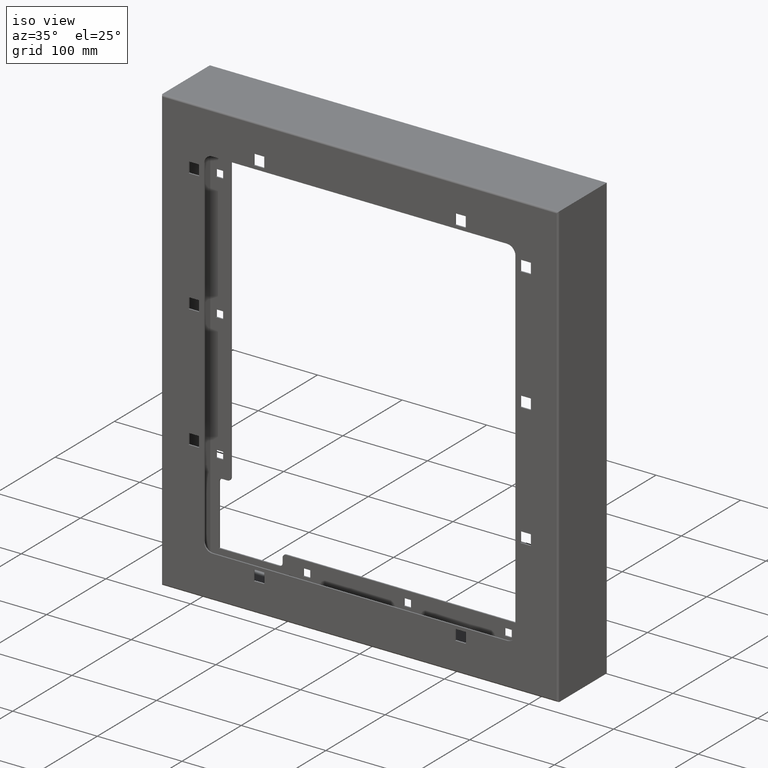
[diagram: clean part render]
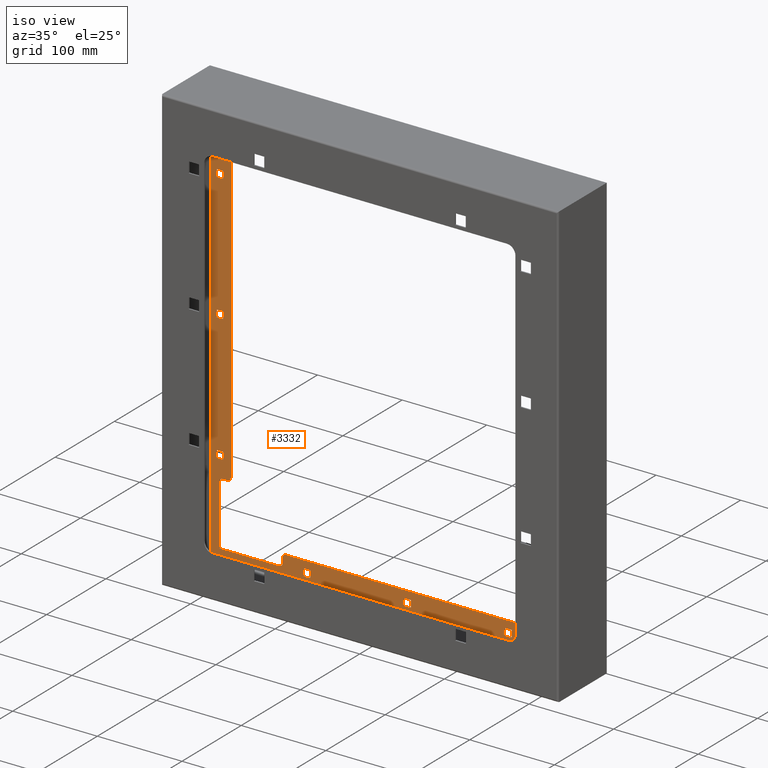
[diagram: same view with one face highlighted and labeled with its STEP entity id]
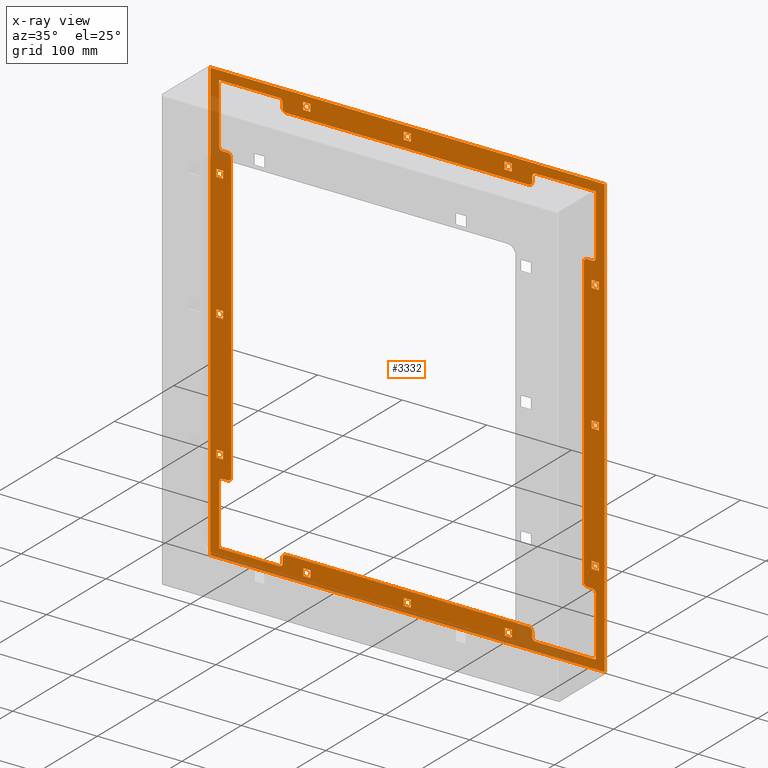
[diagram: x-ray of the same camera — body ghosted, the highlighted face saturated]
A machine part, iso view. The second image highlights one B-rep face of the part: STEP entity #3332.
The next image is the same camera in x-ray: the body ghosted, the highlighted face saturated — about 8% of this face is hidden behind the body in this view.
In plain terms, the highlighted planar face has unit normal (0, -1, 0).
Its self-contained STEP definition (entity closure, byte-faithful):
#1 = CARTESIAN_POINT ( 'NONE',  ( 114.7499999999999700, 80.50000000000000000, 253.2500000000000300 ) ) ;
#3 = CARTESIAN_POINT ( 'NONE',  ( -234.5000000000001700, 80.50000000000000000, 249.9999999999996600 ) ) ;
#4 = CARTESIAN_POINT ( 'NONE',  ( -123.2500000000000000, 80.50000000000000000, -253.2500000000000300 ) ) ;
#5 = CARTESIAN_POINT ( 'NONE',  ( 123.2500000000000000, 80.50000000000000000, 253.2500000000000300 ) ) ;
#7 = CARTESIAN_POINT ( 'NONE',  ( -234.5000000000000000, 80.50000000000000000, 253.2499999999999700 ) ) ;
#9 = DIRECTION ( 'NONE',  ( -1.000000000000000000, 0.0000000000000000000, 0.0000000000000000000 ) ) ;
#11 = CARTESIAN_POINT ( 'NONE',  ( -234.4999999999998000, 80.50000000000000000, 249.9999999999998900 ) ) ;
#15 = DIRECTION ( 'NONE',  ( -0.0000000000000000000, 1.000000000000000000, -0.0000000000000000000 ) ) ;
#16 = CARTESIAN_POINT ( 'NONE',  ( 208.5000000000000300, 80.50000000000000000, -262.0000000000001100 ) ) ;
#17 = DIRECTION ( 'NONE',  ( -2.040851148208006500E-016, 0.0000000000000000000, 1.000000000000000000 ) ) ;
#18 = CARTESIAN_POINT ( 'NONE',  ( -4.249999999999998200, 80.50000000000000000, 253.2500000000000300 ) ) ;
#19 = DIRECTION ( 'NONE',  ( 0.0000000000000000000, 0.0000000000000000000, -1.000000000000000000 ) ) ;
#21 = CARTESIAN_POINT ( 'NONE',  ( -232.9999999999999700, 80.50000000000000000, -262.0000000000000000 ) ) ;
#23 = CARTESIAN_POINT ( 'NONE',  ( 143.4999999999999700, 80.50000000000000000, -240.0000000000000600 ) ) ;
#26 = CARTESIAN_POINT ( 'NONE',  ( -234.5000000000000000, 80.50000000000000000, -236.0000000000000300 ) ) ;
#29 = DIRECTION ( 'NONE',  ( 0.0000000000000000000, 0.0000000000000000000, -1.000000000000000000 ) ) ;
#30 = DIRECTION ( 'NONE',  ( 0.0000000000000000000, -1.000000000000000000, 0.0000000000000000000 ) ) ;
#35 = CARTESIAN_POINT ( 'NONE',  ( -151.4999999999999700, 80.50000000000000000, -249.9999999999999400 ) ) ;
#36 = CARTESIAN_POINT ( 'NONE',  ( 217.7499999999996000, 80.50000000000000000, -262.0000000000015300 ) ) ;
#37 = DIRECTION ( 'NONE',  ( -1.000000000000000000, 0.0000000000000000000, 0.0000000000000000000 ) ) ;
#41 = CARTESIAN_POINT ( 'NONE',  ( -217.7499999999999700, 80.50000000000000000, -154.2500000000000300 ) ) ;
#42 = CARTESIAN_POINT ( 'NONE',  ( -114.7499999999999700, 80.50000000000000000, -253.2500000000000300 ) ) ;
#43 = CARTESIAN_POINT ( 'NONE',  ( -4.249999999999998200, 80.50000000000000000, 244.7500000000000000 ) ) ;
#44 = DIRECTION ( 'NONE',  ( -0.0000000000000000000, 1.000000000000000000, -0.0000000000000000000 ) ) ;
#45 = CARTESIAN_POINT ( 'NONE',  ( 4.250000000000003600, 80.50000000000000000, 244.7500000000000300 ) ) ;
#47 = CARTESIAN_POINT ( 'NONE',  ( 226.2499999999999700, 80.50000000000000000, -154.2500000000000300 ) ) ;
#48 = CARTESIAN_POINT ( 'NONE',  ( -4.250000000000003600, 80.50000000000000000, -253.2500000000000300 ) ) ;
#49 = CARTESIAN_POINT ( 'NONE',  ( 218.5000000000000000, 80.50000000000000000, -179.0000000000000000 ) ) ;
#50 = CARTESIAN_POINT ( 'NONE',  ( -234.5000000000000000, 80.50000000000000000, -249.9999999999998000 ) ) ;
#51 = CARTESIAN_POINT ( 'NONE',  ( -226.2499999999999400, 80.50000000000000000, 4.249999999999999100 ) ) ;
#52 = CARTESIAN_POINT ( 'NONE',  ( -217.7499999999999400, 80.50000000000000000, 4.249999999999999100 ) ) ;
#53 = CARTESIAN_POINT ( 'NONE',  ( 4.250000000000003600, 80.50000000000000000, -262.0000000000000600 ) ) ;
#54 = DIRECTION ( 'NONE',  ( -3.700743415417189100E-016, 0.0000000000000000000, 1.000000000000000000 ) ) ;
#57 = CARTESIAN_POINT ( 'NONE',  ( 217.7500000000000000, 80.50000000000000000, 145.7500000000000600 ) ) ;
#59 = CARTESIAN_POINT ( 'NONE',  ( 217.7499999999999400, 80.50000000000000000, -154.2500000000000300 ) ) ;
#62 = CARTESIAN_POINT ( 'NONE',  ( -234.4999999999999400, 80.50000000000000000, -244.7499999999992300 ) ) ;
#64 = CARTESIAN_POINT ( 'NONE',  ( 212.5000000000001100, 80.50000000000000000, 170.9999999999999400 ) ) ;
#65 = CARTESIAN_POINT ( 'NONE',  ( -218.5000000000000000, 80.50000000000000000, -175.0000000000000000 ) ) ;
#68 = DIRECTION ( 'NONE',  ( 1.000000000000000000, 0.0000000000000000000, -3.700743415417188600E-016 ) ) ;
#69 = DIRECTION ( 'NONE',  ( 2.352167425053297400E-016, 0.0000000000000000000, 1.000000000000000000 ) ) ;
#70 = DIRECTION ( 'NONE',  ( -1.059373115100340100E-016, 0.0000000000000000000, 1.000000000000000000 ) ) ;
#71 = CARTESIAN_POINT ( 'NONE',  ( -143.4999999999999700, 80.50000000000000000, -240.0000000000000300 ) ) ;
#72 = DIRECTION ( 'NONE',  ( -1.000000000000000000, 0.0000000000000000000, 0.0000000000000000000 ) ) ;
#73 = CARTESIAN_POINT ( 'NONE',  ( -234.5000000000000000, 80.50000000000000000, 174.9999999999999400 ) ) ;
#74 = DIRECTION ( 'NONE',  ( 1.000000000000000000, 0.0000000000000000000, 0.0000000000000000000 ) ) ;
#76 = DIRECTION ( 'NONE',  ( 0.0000000000000000000, 0.0000000000000000000, -1.000000000000000000 ) ) ;
#78 = CARTESIAN_POINT ( 'NONE',  ( 151.4999999999999700, 80.50000000000000000, -245.9999999999999400 ) ) ;
#81 = CARTESIAN_POINT ( 'NONE',  ( -114.7499999999999700, 80.50000000000000000, -244.7500000000000300 ) ) ;
#82 = CARTESIAN_POINT ( 'NONE',  ( -218.5000000000000600, 80.50000000000000000, 178.9999999999999400 ) ) ;
#83 = CARTESIAN_POINT ( 'NONE',  ( -151.5000000000000300, 80.50000000000000000, 245.9999999999998900 ) ) ;
#84 = DIRECTION ( 'NONE',  ( 0.0000000000000000000, 0.0000000000000000000, -1.000000000000000000 ) ) ;
#85 = DIRECTION ( 'NONE',  ( 0.0000000000000000000, -1.000000000000000000, 0.0000000000000000000 ) ) ;
#86 = CARTESIAN_POINT ( 'NONE',  ( -234.5000000000000000, 80.50000000000000000, 4.249999999999976000 ) ) ;
#87 = CARTESIAN_POINT ( 'NONE',  ( 226.2499999999999700, 80.50000000000000000, 154.2500000000000300 ) ) ;
#88 = DIRECTION ( 'NONE',  ( -3.265361837132810400E-015, 0.0000000000000000000, -1.000000000000000000 ) ) ;
#89 = DIRECTION ( 'NONE',  ( 3.700743415417189100E-016, 0.0000000000000000000, 1.000000000000000000 ) ) ;
#92 = DIRECTION ( 'NONE',  ( -0.0000000000000000000, 1.000000000000000000, -0.0000000000000000000 ) ) ;
#93 = DIRECTION ( 'NONE',  ( -1.000000000000000000, 0.0000000000000000000, 0.0000000000000000000 ) ) ;
#97 = DIRECTION ( 'NONE',  ( 0.0000000000000000000, 0.0000000000000000000, -1.000000000000000000 ) ) ;
#102 = CARTESIAN_POINT ( 'NONE',  ( -226.2499999999999700, 80.50000000000000000, -154.2500000000000300 ) ) ;
#103 = DIRECTION ( 'NONE',  ( 0.0000000000000000000, -1.000000000000000000, 0.0000000000000000000 ) ) ;
#104 = DIRECTION ( 'NONE',  ( 0.0000000000000000000, 0.0000000000000000000, -1.000000000000000000 ) ) ;
#105 = DIRECTION ( 'NONE',  ( 0.0000000000000000000, 0.0000000000000000000, -1.000000000000000000 ) ) ;
#106 = CARTESIAN_POINT ( 'NONE',  ( 222.5000000000002600, 80.50000000000000000, -261.9999999999998300 ) ) ;
#107 = CARTESIAN_POINT ( 'NONE',  ( 222.4999999999999100, 80.50000000000000000, -262.0000000000001700 ) ) ;
#109 = DIRECTION ( 'NONE',  ( 2.040851148208006500E-016, 0.0000000000000000000, 1.000000000000000000 ) ) ;
#110 = DIRECTION ( 'NONE',  ( 1.000000000000000000, 0.0000000000000000000, -6.656013337081273500E-017 ) ) ;
#111 = CARTESIAN_POINT ( 'NONE',  ( -234.5000000000000000, 80.50000000000000000, -175.0000000000000000 ) ) ;
#112 = DIRECTION ( 'NONE',  ( -1.000000000000000000, 0.0000000000000000000, -3.700743415417188600E-016 ) ) ;
#113 = DIRECTION ( 'NONE',  ( 0.0000000000000000000, 0.0000000000000000000, -1.000000000000000000 ) ) ;
#114 = CARTESIAN_POINT ( 'NONE',  ( 147.4999999999999700, 80.50000000000000000, -262.0000000000000000 ) ) ;
#116 = CARTESIAN_POINT ( 'NONE',  ( 212.5000000000000600, 80.50000000000000000, -170.9999999999999700 ) ) ;
#118 = DIRECTION ( 'NONE',  ( 0.0000000000000000000, -1.000000000000000000, 0.0000000000000000000 ) ) ;
#119 = CARTESIAN_POINT ( 'NONE',  ( 226.2499999999999700, 80.50000000000000000, 145.7500000000000300 ) ) ;
#122 = CARTESIAN_POINT ( 'NONE',  ( -208.4999999999999100, 80.50000000000000000, 170.9999999999999400 ) ) ;
#123 = CARTESIAN_POINT ( 'NONE',  ( -222.5000000000002300, 80.50000000000000000, -262.0000000000000000 ) ) ;
#124 = DIRECTION ( 'NONE',  ( -3.700743415417189100E-016, 0.0000000000000000000, -1.000000000000000000 ) ) ;
#126 = CARTESIAN_POINT ( 'NONE',  ( 4.250000000000003600, 80.50000000000000000, -244.7500000000000300 ) ) ;
#132 = CARTESIAN_POINT ( 'NONE',  ( -234.5000000000000000, 80.50000000000000000, -244.7500000000000300 ) ) ;
#134 = CARTESIAN_POINT ( 'NONE',  ( 217.7499999999999700, 80.50000000000000000, 154.2500000000000300 ) ) ;
#135 = DIRECTION ( 'NONE',  ( -0.0000000000000000000, 1.000000000000000000, -0.0000000000000000000 ) ) ;
#136 = CARTESIAN_POINT ( 'NONE',  ( 4.250000000000003600, 80.50000000000000000, 253.2499999999999700 ) ) ;
#138 = DIRECTION ( 'NONE',  ( 0.0000000000000000000, 0.0000000000000000000, -1.000000000000000000 ) ) ;
#139 = CARTESIAN_POINT ( 'NONE',  ( -4.249999999999998200, 80.50000000000000000, -244.7500000000000000 ) ) ;
#140 = DIRECTION ( 'NONE',  ( -1.000000000000000000, 0.0000000000000000000, 3.265361837132812400E-015 ) ) ;
#141 = DIRECTION ( 'NONE',  ( 0.0000000000000000000, 0.0000000000000000000, -1.000000000000000000 ) ) ;
#142 = CARTESIAN_POINT ( 'NONE',  ( 123.2500000000000000, 80.50000000000000000, -253.2500000000000300 ) ) ;
#144 = CARTESIAN_POINT ( 'NONE',  ( 4.250000000000114600, 80.50000000000000000, -261.9999999999999400 ) ) ;
#146 = DIRECTION ( 'NONE',  ( -1.000000000000000000, 0.0000000000000000000, 3.700743415417188600E-016 ) ) ;
#148 = CARTESIAN_POINT ( 'NONE',  ( 147.5000000000000300, 80.50000000000000000, -262.0000000000000000 ) ) ;
#150 = CARTESIAN_POINT ( 'NONE',  ( -123.2500000000000000, 80.50000000000000000, -244.7500000000000300 ) ) ;
#151 = ORIENTED_EDGE ( 'NONE', *, *, #3973, .T. ) ;
#152 = ORIENTED_EDGE ( 'NONE', *, *, #3976, .F. ) ;
#153 = ORIENTED_EDGE ( 'NONE', *, *, #871, .T. ) ;
#154 = ORIENTED_EDGE ( 'NONE', *, *, #870, .F. ) ;
#155 = ORIENTED_EDGE ( 'NONE', *, *, #869, .F. ) ;
#156 = ORIENTED_EDGE ( 'NONE', *, *, #868, .T. ) ;
#157 = ORIENTED_EDGE ( 'NONE', *, *, #3977, .F. ) ;
#158 = ORIENTED_EDGE ( 'NONE', *, *, #3985, .T. ) ;
#159 = ORIENTED_EDGE ( 'NONE', *, *, #4015, .F. ) ;
#160 = ORIENTED_EDGE ( 'NONE', *, *, #4000, .F. ) ;
#161 = ORIENTED_EDGE ( 'NONE', *, *, #1816, .F. ) ;
#162 = ORIENTED_EDGE ( 'NONE', *, *, #3992, .F. ) ;
#163 = ORIENTED_EDGE ( 'NONE', *, *, #4006, .F. ) ;
#164 = ORIENTED_EDGE ( 'NONE', *, *, #3999, .F. ) ;
#165 = ORIENTED_EDGE ( 'NONE', *, *, #3971, .F. ) ;
#166 = ORIENTED_EDGE ( 'NONE', *, *, #3907, .F. ) ;
#167 = ORIENTED_EDGE ( 'NONE', *, *, #1819, .F. ) ;
#168 = ORIENTED_EDGE ( 'NONE', *, *, #854, .F. ) ;
#169 = ORIENTED_EDGE ( 'NONE', *, *, #4007, .F. ) ;
#170 = ORIENTED_EDGE ( 'NONE', *, *, #3994, .F. ) ;
#171 = ORIENTED_EDGE ( 'NONE', *, *, #859, .F. ) ;
#172 = ORIENTED_EDGE ( 'NONE', *, *, #867, .F. ) ;
#173 = ORIENTED_EDGE ( 'NONE', *, *, #3988, .F. ) ;
#174 = ORIENTED_EDGE ( 'NONE', *, *, #4011, .F. ) ;
#175 = ORIENTED_EDGE ( 'NONE', *, *, #1812, .F. ) ;
#198 = EDGE_CURVE ( 'NONE', #1002, #1015, #4779, .T. ) ;
#247 = DIRECTION ( 'NONE',  ( 0.0000000000000000000, 0.0000000000000000000, -1.000000000000000000 ) ) ;
#284 = EDGE_CURVE ( 'NONE', #1015, #1017, #4782, .T. ) ;
#285 = EDGE_CURVE ( 'NONE', #2215, #2182, #4781, .T. ) ;
#352 = CARTESIAN_POINT ( 'NONE',  ( 151.5000000000000600, 80.50000000000000000, 249.9999999999998000 ) ) ;
#353 = CARTESIAN_POINT ( 'NONE',  ( 147.5000000000000300, 80.50000000000000000, 240.0000000000000000 ) ) ;
#356 = CARTESIAN_POINT ( 'NONE',  ( -147.5000000000000300, 80.50000000000000000, 245.9999999999998900 ) ) ;
#357 = CARTESIAN_POINT ( 'NONE',  ( -226.2499999999999700, 80.50000000000000000, -145.7500000000000300 ) ) ;
#358 = CARTESIAN_POINT ( 'NONE',  ( -143.5000000000000300, 80.50000000000000000, 236.0000000000000000 ) ) ;
#359 = CARTESIAN_POINT ( 'NONE',  ( 151.4999999999999700, 80.50000000000000000, -249.9999999999999400 ) ) ;
#360 = CARTESIAN_POINT ( 'NONE',  ( 222.5000000000000300, 80.50000000000000000, 249.9999999999999100 ) ) ;
#361 = CARTESIAN_POINT ( 'NONE',  ( -212.4999999999999400, 80.50000000000000000, 174.9999999999999400 ) ) ;
#362 = CARTESIAN_POINT ( 'NONE',  ( 147.5000000000000300, 80.50000000000000000, 245.9999999999998900 ) ) ;
#363 = CARTESIAN_POINT ( 'NONE',  ( 212.5000000000000900, 80.50000000000000000, 174.9999999999999400 ) ) ;
#364 = CARTESIAN_POINT ( 'NONE',  ( 143.5000000000000600, 80.50000000000000000, 235.9999999999999700 ) ) ;
#365 = CARTESIAN_POINT ( 'NONE',  ( -217.7500000000000000, 80.50000000000000000, -145.7500000000000300 ) ) ;
#366 = CARTESIAN_POINT ( 'NONE',  ( -222.5000000000000600, 80.50000000000000000, 178.9999999999999400 ) ) ;
#367 = CARTESIAN_POINT ( 'NONE',  ( -208.5000000000000000, 80.50000000000000000, -170.9999999999999700 ) ) ;
#368 = CARTESIAN_POINT ( 'NONE',  ( -218.5000000000000600, 80.50000000000000000, 174.9999999999999400 ) ) ;
#369 = CARTESIAN_POINT ( 'NONE',  ( 222.5000000000000900, 80.50000000000000000, 178.9999999999999400 ) ) ;
#370 = CARTESIAN_POINT ( 'NONE',  ( -151.5000000000000300, 80.50000000000000000, 249.9999999999998600 ) ) ;
#372 = CARTESIAN_POINT ( 'NONE',  ( 218.4999999999999700, 80.50000000000000000, -175.0000000000000000 ) ) ;
#374 = CARTESIAN_POINT ( 'NONE',  ( -147.5000000000000300, 80.50000000000000000, 240.0000000000000000 ) ) ;
#375 = CARTESIAN_POINT ( 'NONE',  ( 147.4999999999999700, 80.50000000000000000, -240.0000000000000600 ) ) ;
#377 = CARTESIAN_POINT ( 'NONE',  ( -222.5000000000000300, 80.50000000000000000, 249.9999999999999100 ) ) ;
#378 = CARTESIAN_POINT ( 'NONE',  ( 208.5000000000000600, 80.50000000000000000, -170.9999999999999700 ) ) ;
#380 = CARTESIAN_POINT ( 'NONE',  ( 208.5000000000001400, 80.50000000000000000, 170.9999999999999400 ) ) ;
#382 = CARTESIAN_POINT ( 'NONE',  ( 218.5000000000000900, 80.50000000000000000, 174.9999999999999400 ) ) ;
#505 = VERTEX_POINT ( 'NONE', #65 ) ;
#511 = VERTEX_POINT ( 'NONE', #35 ) ;
#562 = CARTESIAN_POINT ( 'NONE',  ( -234.5000000000000000, 80.50000000000000000, -262.0000000000000000 ) ) ;
#582 = PLANE ( 'NONE',  #2104 ) ;
#583 = DIRECTION ( 'NONE',  ( 0.0000000000000000000, -1.000000000000000000, 0.0000000000000000000 ) ) ;
#584 = DIRECTION ( 'NONE',  ( 0.0000000000000000000, -0.0000000000000000000, -1.000000000000000000 ) ) ;
#594 = DIRECTION ( 'NONE',  ( 0.0000000000000000000, 0.0000000000000000000, -1.000000000000000000 ) ) ;
#597 = CARTESIAN_POINT ( 'NONE',  ( 114.7499999999999600, 80.50000000000000000, -262.0000000000000000 ) ) ;
#598 = CARTESIAN_POINT ( 'NONE',  ( 232.9999999999999700, 80.50000000000000000, -262.0000000000000600 ) ) ;
#600 = CARTESIAN_POINT ( 'NONE',  ( -234.5000000000000000, 80.50000000000000000, -253.2500000000000300 ) ) ;
#601 = DIRECTION ( 'NONE',  ( 1.000000000000000000, 0.0000000000000000000, 0.0000000000000000000 ) ) ;
#602 = CARTESIAN_POINT ( 'NONE',  ( -123.2500000000000000, 80.50000000000000000, -262.0000000000000000 ) ) ;
#604 = DIRECTION ( 'NONE',  ( 0.0000000000000000000, 0.0000000000000000000, -1.000000000000000000 ) ) ;
#605 = DIRECTION ( 'NONE',  ( -1.059373115100340100E-016, 0.0000000000000000000, -1.000000000000000000 ) ) ;
#606 = CARTESIAN_POINT ( 'NONE',  ( -123.2499999999991500, 80.50000000000000000, -261.9999999999998300 ) ) ;
#607 = CARTESIAN_POINT ( 'NONE',  ( -114.7499999999999700, 80.50000000000000000, -262.0000000000000000 ) ) ;
#608 = CARTESIAN_POINT ( 'NONE',  ( -143.5000000000000300, 80.50000000000000000, 240.0000000000000300 ) ) ;
#609 = DIRECTION ( 'NONE',  ( 0.0000000000000000000, -1.000000000000000000, 0.0000000000000000000 ) ) ;
#610 = DIRECTION ( 'NONE',  ( 0.0000000000000000000, 0.0000000000000000000, -1.000000000000000000 ) ) ;
#613 = CARTESIAN_POINT ( 'NONE',  ( -147.5000000000000300, 80.50000000000000000, -262.0000000000000000 ) ) ;
#614 = DIRECTION ( 'NONE',  ( 0.0000000000000000000, 0.0000000000000000000, 1.000000000000000000 ) ) ;
#615 = CARTESIAN_POINT ( 'NONE',  ( -234.5000000000000000, 80.50000000000000000, 174.9999999999999400 ) ) ;
#616 = DIRECTION ( 'NONE',  ( 1.000000000000000000, 0.0000000000000000000, 0.0000000000000000000 ) ) ;
#617 = CARTESIAN_POINT ( 'NONE',  ( -234.5000000000000000, 80.50000000000000000, -260.5000000000000000 ) ) ;
#618 = CARTESIAN_POINT ( 'NONE',  ( -234.5000000000000000, 80.50000000000000000, -154.2500000000000300 ) ) ;
#619 = DIRECTION ( 'NONE',  ( -1.000000000000000000, 0.0000000000000000000, 0.0000000000000000000 ) ) ;
#620 = DIRECTION ( 'NONE',  ( 0.0000000000000000000, 0.0000000000000000000, 1.000000000000000000 ) ) ;
#621 = CARTESIAN_POINT ( 'NONE',  ( 226.2499999999999400, 80.50000000000000000, -262.0000000000000000 ) ) ;
#622 = DIRECTION ( 'NONE',  ( 0.0000000000000000000, 0.0000000000000000000, 1.000000000000000000 ) ) ;
#623 = DIRECTION ( 'NONE',  ( 0.0000000000000000000, 0.0000000000000000000, 1.000000000000000000 ) ) ;
#624 = DIRECTION ( 'NONE',  ( 1.632680918566405200E-015, 0.0000000000000000000, -1.000000000000000000 ) ) ;
#625 = CARTESIAN_POINT ( 'NONE',  ( 123.2500000000000300, 80.50000000000000000, -262.0000000000000000 ) ) ;
#626 = DIRECTION ( 'NONE',  ( 1.000000000000000000, 0.0000000000000000000, 0.0000000000000000000 ) ) ;
#627 = CARTESIAN_POINT ( 'NONE',  ( 123.2499999999991300, 80.50000000000000000, -262.0000000000006300 ) ) ;
#628 = DIRECTION ( 'NONE',  ( 1.632680918566405200E-015, 0.0000000000000000000, 1.000000000000000000 ) ) ;
#629 = CARTESIAN_POINT ( 'NONE',  ( -234.5000000000000000, 80.50000000000000000, 145.7500000000000600 ) ) ;
#630 = DIRECTION ( 'NONE',  ( 1.000000000000000000, 0.0000000000000000000, 0.0000000000000000000 ) ) ;
#631 = CARTESIAN_POINT ( 'NONE',  ( -226.2499999999999400, 80.50000000000000000, -262.0000000000000000 ) ) ;
#632 = CARTESIAN_POINT ( 'NONE',  ( -234.5000000000000000, 80.50000000000000000, -4.249999999999976000 ) ) ;
#633 = CARTESIAN_POINT ( 'NONE',  ( -212.4999999999999400, 80.50000000000000000, 170.9999999999999100 ) ) ;
#634 = DIRECTION ( 'NONE',  ( 0.0000000000000000000, -1.000000000000000000, 0.0000000000000000000 ) ) ;
#635 = DIRECTION ( 'NONE',  ( 0.0000000000000000000, 0.0000000000000000000, -1.000000000000000000 ) ) ;
#636 = CARTESIAN_POINT ( 'NONE',  ( -234.5000000000000000, 80.50000000000000000, 154.2500000000000000 ) ) ;
#637 = DIRECTION ( 'NONE',  ( 1.000000000000000000, 0.0000000000000000000, 0.0000000000000000000 ) ) ;
#638 = CARTESIAN_POINT ( 'NONE',  ( 226.2500000000000000, 80.50000000000000000, -262.0000000000000000 ) ) ;
#639 = DIRECTION ( 'NONE',  ( 0.0000000000000000000, 0.0000000000000000000, -1.000000000000000000 ) ) ;
#640 = CARTESIAN_POINT ( 'NONE',  ( -234.5000000000000000, 80.50000000000000000, 244.7500000000000300 ) ) ;
#641 = DIRECTION ( 'NONE',  ( -1.000000000000000000, 0.0000000000000000000, 0.0000000000000000000 ) ) ;
#642 = CARTESIAN_POINT ( 'NONE',  ( -234.5000000000000000, 80.50000000000000000, 4.249999999999976000 ) ) ;
#644 = DIRECTION ( 'NONE',  ( -1.000000000000000000, 0.0000000000000000000, 0.0000000000000000000 ) ) ;
#645 = DIRECTION ( 'NONE',  ( 0.0000000000000000000, 0.0000000000000000000, 1.000000000000000000 ) ) ;
#646 = CARTESIAN_POINT ( 'NONE',  ( -234.5000000000000000, 80.50000000000000000, -154.2500000000000300 ) ) ;
#647 = DIRECTION ( 'NONE',  ( 1.000000000000000000, 0.0000000000000000000, 0.0000000000000000000 ) ) ;
#648 = CARTESIAN_POINT ( 'NONE',  ( -234.5000000000000000, 80.50000000000000000, -253.2500000000000300 ) ) ;
#649 = DIRECTION ( 'NONE',  ( 1.000000000000000000, 0.0000000000000000000, 0.0000000000000000000 ) ) ;
#650 = CARTESIAN_POINT ( 'NONE',  ( -234.5000000000000000, 80.50000000000000000, -253.2500000000000300 ) ) ;
#652 = DIRECTION ( 'NONE',  ( 1.000000000000000000, 0.0000000000000000000, 0.0000000000000000000 ) ) ;
#653 = DIRECTION ( 'NONE',  ( 1.000000000000000000, 0.0000000000000000000, 0.0000000000000000000 ) ) ;
#654 = CARTESIAN_POINT ( 'NONE',  ( -234.5000000000000000, 80.50000000000000000, 260.4999999999999400 ) ) ;
#655 = DIRECTION ( 'NONE',  ( 1.000000000000000000, 0.0000000000000000000, 0.0000000000000000000 ) ) ;
#657 = CARTESIAN_POINT ( 'NONE',  ( -234.5000000000000000, 80.50000000000000000, -145.7500000000000300 ) ) ;
#658 = CARTESIAN_POINT ( 'NONE',  ( 151.5000000000000300, 80.50000000000000000, 245.9999999999998900 ) ) ;
#659 = DIRECTION ( 'NONE',  ( -0.0000000000000000000, 1.000000000000000000, -0.0000000000000000000 ) ) ;
#660 = DIRECTION ( 'NONE',  ( 0.0000000000000000000, 0.0000000000000000000, -1.000000000000000000 ) ) ;
#661 = CARTESIAN_POINT ( 'NONE',  ( -234.5000000000000000, 80.50000000000000000, -244.7500000000000300 ) ) ;
#663 = DIRECTION ( 'NONE',  ( -1.000000000000000000, 0.0000000000000000000, 0.0000000000000000000 ) ) ;
#664 = DIRECTION ( 'NONE',  ( -1.000000000000000000, 0.0000000000000000000, 0.0000000000000000000 ) ) ;
#665 = CARTESIAN_POINT ( 'NONE',  ( -234.5000000000000000, 80.50000000000000000, 145.7500000000000600 ) ) ;
#666 = DIRECTION ( 'NONE',  ( 1.000000000000000000, 0.0000000000000000000, 0.0000000000000000000 ) ) ;
#669 = CARTESIAN_POINT ( 'NONE',  ( -4.250000000000003600, 80.50000000000000000, -262.0000000000000000 ) ) ;
#670 = DIRECTION ( 'NONE',  ( 0.0000000000000000000, 0.0000000000000000000, -1.000000000000000000 ) ) ;
#671 = CARTESIAN_POINT ( 'NONE',  ( -217.7500000000013400, 80.50000000000000000, -262.0000000000000600 ) ) ;
#672 = DIRECTION ( 'NONE',  ( 3.265361837132810400E-015, 0.0000000000000000000, 1.000000000000000000 ) ) ;
#673 = CARTESIAN_POINT ( 'NONE',  ( -234.5000000000016500, 80.50000000000000000, 244.7499999999992300 ) ) ;
#674 = DIRECTION ( 'NONE',  ( 1.000000000000000000, 0.0000000000000000000, 3.265361837132812400E-015 ) ) ;
#675 = CARTESIAN_POINT ( 'NONE',  ( -217.7499999999996000, 80.50000000000000000, -261.9999999999999400 ) ) ;
#676 = DIRECTION ( 'NONE',  ( -3.265361837132810400E-015, 0.0000000000000000000, 1.000000000000000000 ) ) ;
#677 = CARTESIAN_POINT ( 'NONE',  ( -4.250000000000003600, 80.50000000000000000, -262.0000000000000000 ) ) ;
#678 = DIRECTION ( 'NONE',  ( 0.0000000000000000000, 0.0000000000000000000, -1.000000000000000000 ) ) ;
#679 = CARTESIAN_POINT ( 'NONE',  ( 217.7500000000013400, 80.50000000000000000, -261.9999999999985200 ) ) ;
#680 = DIRECTION ( 'NONE',  ( 3.265361837132810400E-015, 0.0000000000000000000, -1.000000000000000000 ) ) ;
#683 = CARTESIAN_POINT ( 'NONE',  ( -234.5000000000000000, 80.50000000000000000, -145.7500000000000300 ) ) ;
#684 = DIRECTION ( 'NONE',  ( -1.000000000000000000, 0.0000000000000000000, 0.0000000000000000000 ) ) ;
#685 = CARTESIAN_POINT ( 'NONE',  ( -234.5000000000000000, 80.50000000000000000, -4.249999999999976000 ) ) ;
#686 = DIRECTION ( 'NONE',  ( 1.000000000000000000, 0.0000000000000000000, 0.0000000000000000000 ) ) ;
#687 = CARTESIAN_POINT ( 'NONE',  ( 226.2500000000000000, 80.50000000000000000, -262.0000000000000000 ) ) ;
#688 = DIRECTION ( 'NONE',  ( 0.0000000000000000000, 0.0000000000000000000, 1.000000000000000000 ) ) ;
#691 = CARTESIAN_POINT ( 'NONE',  ( -234.4999999999999700, 80.50000000000000000, 236.0000000000000000 ) ) ;
#692 = DIRECTION ( 'NONE',  ( -1.000000000000000000, 0.0000000000000000000, 6.656013337081273500E-017 ) ) ;
#693 = CARTESIAN_POINT ( 'NONE',  ( -208.5000000000000300, 80.50000000000000000, -262.0000000000000000 ) ) ;
#694 = DIRECTION ( 'NONE',  ( -2.352167425053297400E-016, 0.0000000000000000000, -1.000000000000000000 ) ) ;
#846 = EDGE_CURVE ( 'NONE', #2187, #2180, #4795, .T. ) ;
#848 = EDGE_CURVE ( 'NONE', #1101, #4219, #4784, .T. ) ;
#849 = EDGE_CURVE ( 'NONE', #2191, #2281, #4786, .T. ) ;
#850 = EDGE_CURVE ( 'NONE', #2323, #2281, #4793, .T. ) ;
#851 = EDGE_CURVE ( 'NONE', #1089, #1006, #4790, .T. ) ;
#852 = EDGE_CURVE ( 'NONE', #1080, #1078, #4791, .T. ) ;
#853 = EDGE_CURVE ( 'NONE', #2323, #1789, #4797, .T. ) ;
#854 = EDGE_CURVE ( 'NONE', #989, #987, #4801, .T. ) ;
#855 = EDGE_CURVE ( 'NONE', #2299, #1789, #4799, .T. ) ;
#856 = EDGE_CURVE ( 'NONE', #2299, #1787, #4802, .T. ) ;
#857 = EDGE_CURVE ( 'NONE', #1790, #1787, #4806, .T. ) ;
#858 = EDGE_CURVE ( 'NONE', #2183, #1790, #4804, .T. ) ;
#859 = EDGE_CURVE ( 'NONE', #1063, #989, #4807, .T. ) ;
#860 = EDGE_CURVE ( 'NONE', #2183, #1784, #4809, .T. ) ;
#861 = EDGE_CURVE ( 'NONE', #2297, #1784, #4813, .T. ) ;
#862 = EDGE_CURVE ( 'NONE', #2191, #2399, #4811, .T. ) ;
#863 = EDGE_CURVE ( 'NONE', #2182, #2179, #4814, .T. ) ;
#864 = EDGE_CURVE ( 'NONE', #2297, #1782, #4816, .T. ) ;
#865 = EDGE_CURVE ( 'NONE', #1785, #1782, #4820, .T. ) ;
#866 = EDGE_CURVE ( 'NONE', #1785, #1780, #4818, .T. ) ;
#867 = EDGE_CURVE ( 'NONE', #997, #994, #4823, .T. ) ;
#868 = EDGE_CURVE ( 'NONE', #2214, #2211, #4821, .T. ) ;
#869 = EDGE_CURVE ( 'NONE', #2300, #2211, #4826, .T. ) ;
#870 = EDGE_CURVE ( 'NONE', #2251, #2300, #4824, .T. ) ;
#871 = EDGE_CURVE ( 'NONE', #2251, #2185, #4827, .T. ) ;
#977 = VERTEX_POINT ( 'NONE', #122 ) ;
#979 = VERTEX_POINT ( 'NONE', #150 ) ;
#981 = VERTEX_POINT ( 'NONE', #81 ) ;
#983 = VERTEX_POINT ( 'NONE', #102 ) ;
#985 = VERTEX_POINT ( 'NONE', #41 ) ;
#987 = VERTEX_POINT ( 'NONE', #139 ) ;
#989 = VERTEX_POINT ( 'NONE', #126 ) ;
#991 = VERTEX_POINT ( 'NONE', #4 ) ;
#992 = VERTEX_POINT ( 'NONE', #42 ) ;
#994 = VERTEX_POINT ( 'NONE', #51 ) ;
#997 = VERTEX_POINT ( 'NONE', #52 ) ;
#999 = VERTEX_POINT ( 'NONE', #48 ) ;
#1000 = VERTEX_POINT ( 'NONE', #142 ) ;
#1002 = VERTEX_POINT ( 'NONE', #45 ) ;
#1004 = VERTEX_POINT ( 'NONE', #43 ) ;
#1006 = VERTEX_POINT ( 'NONE', #59 ) ;
#1009 = VERTEX_POINT ( 'NONE', #47 ) ;
#1011 = VERTEX_POINT ( 'NONE', #134 ) ;
#1013 = VERTEX_POINT ( 'NONE', #87 ) ;
#1015 = VERTEX_POINT ( 'NONE', #136 ) ;
#1017 = VERTEX_POINT ( 'NONE', #18 ) ;
#1018 = VERTEX_POINT ( 'NONE', #1 ) ;
#1021 = VERTEX_POINT ( 'NONE', #5 ) ;
#1023 = VERTEX_POINT ( 'NONE', #57 ) ;
#1026 = VERTEX_POINT ( 'NONE', #119 ) ;
#1063 = VERTEX_POINT ( 'NONE', #2443 ) ;
#1067 = VERTEX_POINT ( 'NONE', #2451 ) ;
#1070 = VERTEX_POINT ( 'NONE', #2531 ) ;
#1072 = VERTEX_POINT ( 'NONE', #2462 ) ;
#1074 = ORIENTED_EDGE ( 'NONE', *, *, #1818, .T. ) ;
#1075 = VERTEX_POINT ( 'NONE', #2534 ) ;
#1077 = ORIENTED_EDGE ( 'NONE', *, *, #1820, .F. ) ;
#1078 = VERTEX_POINT ( 'NONE', #2506 ) ;
#1079 = ORIENTED_EDGE ( 'NONE', *, *, #1807, .T. ) ;
#1080 = VERTEX_POINT ( 'NONE', #2494 ) ;
#1082 = ORIENTED_EDGE ( 'NONE', *, *, #1813, .F. ) ;
#1084 = VERTEX_POINT ( 'NONE', #2540 ) ;
#1085 = ORIENTED_EDGE ( 'NONE', *, *, #1803, .F. ) ;
#1087 = VERTEX_POINT ( 'NONE', #2492 ) ;
#1088 = ORIENTED_EDGE ( 'NONE', *, *, #1814, .T. ) ;
#1089 = VERTEX_POINT ( 'NONE', #2497 ) ;
#1091 = ORIENTED_EDGE ( 'NONE', *, *, #1808, .F. ) ;
#1092 = VERTEX_POINT ( 'NONE', #2519 ) ;
#1094 = ORIENTED_EDGE ( 'NONE', *, *, #866, .T. ) ;
#1095 = VERTEX_POINT ( 'NONE', #2527 ) ;
#1097 = ORIENTED_EDGE ( 'NONE', *, *, #865, .F. ) ;
#1098 = VERTEX_POINT ( 'NONE', #2524 ) ;
#1099 = ORIENTED_EDGE ( 'NONE', *, *, #864, .T. ) ;
#1101 = VERTEX_POINT ( 'NONE', #2522 ) ;
#1102 = ORIENTED_EDGE ( 'NONE', *, *, #861, .F. ) ;
#1104 = VERTEX_POINT ( 'NONE', #2455 ) ;
#1105 = ORIENTED_EDGE ( 'NONE', *, *, #860, .T. ) ;
#1108 = ORIENTED_EDGE ( 'NONE', *, *, #858, .F. ) ;
#1112 = VERTEX_POINT ( 'NONE', #2458 ) ;
#1618 = DIRECTION ( 'NONE',  ( 0.0000000000000000000, 0.0000000000000000000, -1.000000000000000000 ) ) ;
#1621 = CARTESIAN_POINT ( 'NONE',  ( 114.7499999999999600, 80.50000000000000000, -262.0000000000000000 ) ) ;
#1729 = ORIENTED_EDGE ( 'NONE', *, *, #4014, .F. ) ;
#1746 = ORIENTED_EDGE ( 'NONE', *, *, #1872, .F. ) ;
#1747 = ORIENTED_EDGE ( 'NONE', *, *, #3995, .F. ) ;
#1748 = ORIENTED_EDGE ( 'NONE', *, *, #3983, .F. ) ;
#1749 = ORIENTED_EDGE ( 'NONE', *, *, #1802, .F. ) ;
#1750 = ORIENTED_EDGE ( 'NONE', *, *, #3979, .F. ) ;
#1780 = VERTEX_POINT ( 'NONE', #2431 ) ;
#1781 = VERTEX_POINT ( 'NONE', #2426 ) ;
#1782 = VERTEX_POINT ( 'NONE', #2427 ) ;
#1783 = VERTEX_POINT ( 'NONE', #2424 ) ;
#1784 = VERTEX_POINT ( 'NONE', #2507 ) ;
#1785 = VERTEX_POINT ( 'NONE', #2502 ) ;
#1786 = VERTEX_POINT ( 'NONE', #2508 ) ;
#1787 = VERTEX_POINT ( 'NONE', #2501 ) ;
#1788 = VERTEX_POINT ( 'NONE', #2421 ) ;
#1789 = VERTEX_POINT ( 'NONE', #2420 ) ;
#1790 = VERTEX_POINT ( 'NONE', #2419 ) ;
#1791 = VERTEX_POINT ( 'NONE', #2523 ) ;
#1792 = VERTEX_POINT ( 'NONE', #2521 ) ;
#1793 = VERTEX_POINT ( 'NONE', #2520 ) ;
#1794 = VERTEX_POINT ( 'NONE', #2437 ) ;
#1795 = VERTEX_POINT ( 'NONE', #2436 ) ;
#1796 = VERTEX_POINT ( 'NONE', #2435 ) ;
#1797 = VERTEX_POINT ( 'NONE', #2533 ) ;
#1799 = VERTEX_POINT ( 'NONE', #2530 ) ;
#1801 = EDGE_CURVE ( 'NONE', #1021, #1018, #4864, .T. ) ;
#1802 = EDGE_CURVE ( 'NONE', #1792, #1791, #4860, .T. ) ;
#1803 = EDGE_CURVE ( 'NONE', #1781, #511, #4863, .T. ) ;
#1804 = EDGE_CURVE ( 'NONE', #1067, #1084, #4861, .T. ) ;
#1806 = EDGE_CURVE ( 'NONE', #2215, #2399, #4859, .T. ) ;
#1807 = EDGE_CURVE ( 'NONE', #1788, #505, #4868, .T. ) ;
#1808 = EDGE_CURVE ( 'NONE', #1783, #1780, #4869, .T. ) ;
#1810 = EDGE_CURVE ( 'NONE', #1796, #1104, #4870, .T. ) ;
#1812 = EDGE_CURVE ( 'NONE', #1075, #997, #4876, .T. ) ;
#1813 = EDGE_CURVE ( 'NONE', #1788, #1781, #4878, .T. ) ;
#1814 = EDGE_CURVE ( 'NONE', #1783, #511, #4874, .T. ) ;
#1816 = EDGE_CURVE ( 'NONE', #2178, #983, #4880, .T. ) ;
#1817 = EDGE_CURVE ( 'NONE', #1098, #1797, #4883, .T. ) ;
#1818 = EDGE_CURVE ( 'NONE', #1786, #2213, #4885, .T. ) ;
#1819 = EDGE_CURVE ( 'NONE', #992, #981, #4889, .T. ) ;
#1820 = EDGE_CURVE ( 'NONE', #1786, #505, #4887, .T. ) ;
#1821 = EDGE_CURVE ( 'NONE', #1104, #1799, #4890, .T. ) ;
#1872 = EDGE_CURVE ( 'NONE', #1018, #1793, #3675, .T. ) ;
#1874 = EDGE_CURVE ( 'NONE', #2192, #2180, #3679, .T. ) ;
#2055 = CARTESIAN_POINT ( 'NONE',  ( 143.5000000000000300, 80.50000000000000000, 240.0000000000000000 ) ) ;
#2056 = DIRECTION ( 'NONE',  ( 0.0000000000000000000, -1.000000000000000000, 0.0000000000000000000 ) ) ;
#2057 = DIRECTION ( 'NONE',  ( 0.0000000000000000000, 0.0000000000000000000, -1.000000000000000000 ) ) ;
#2104 = AXIS2_PLACEMENT_3D ( 'NONE', #562, #583, #584 ) ;
#2107 = AXIS2_PLACEMENT_3D ( 'NONE', #608, #609, #610 ) ;
#2109 = AXIS2_PLACEMENT_3D ( 'NONE', #633, #634, #635 ) ;
#2110 = AXIS2_PLACEMENT_3D ( 'NONE', #658, #659, #660 ) ;
#2178 = VERTEX_POINT ( 'NONE', #357 ) ;
#2179 = VERTEX_POINT ( 'NONE', #352 ) ;
#2180 = VERTEX_POINT ( 'NONE', #353 ) ;
#2181 = VERTEX_POINT ( 'NONE', #358 ) ;
#2182 = VERTEX_POINT ( 'NONE', #360 ) ;
#2183 = VERTEX_POINT ( 'NONE', #359 ) ;
#2185 = VERTEX_POINT ( 'NONE', #356 ) ;
#2187 = VERTEX_POINT ( 'NONE', #362 ) ;
#2191 = VERTEX_POINT ( 'NONE', #363 ) ;
#2192 = VERTEX_POINT ( 'NONE', #364 ) ;
#2211 = VERTEX_POINT ( 'NONE', #366 ) ;
#2212 = VERTEX_POINT ( 'NONE', #361 ) ;
#2213 = VERTEX_POINT ( 'NONE', #367 ) ;
#2214 = VERTEX_POINT ( 'NONE', #368 ) ;
#2215 = VERTEX_POINT ( 'NONE', #369 ) ;
#2251 = VERTEX_POINT ( 'NONE', #370 ) ;
#2264 = ORIENTED_EDGE ( 'NONE', *, *, #1810, .F. ) ;
#2265 = VERTEX_POINT ( 'NONE', #365 ) ;
#2266 = VERTEX_POINT ( 'NONE', #374 ) ;
#2272 = ORIENTED_EDGE ( 'NONE', *, *, #1817, .F. ) ;
#2273 = ORIENTED_EDGE ( 'NONE', *, *, #850, .F. ) ;
#2274 = ORIENTED_EDGE ( 'NONE', *, *, #855, .F. ) ;
#2281 = VERTEX_POINT ( 'NONE', #380 ) ;
#2285 = ORIENTED_EDGE ( 'NONE', *, *, #3997, .T. ) ;
#2289 = ORIENTED_EDGE ( 'NONE', *, *, #3981, .F. ) ;
#2295 = ORIENTED_EDGE ( 'NONE', *, *, #3984, .F. ) ;
#2297 = VERTEX_POINT ( 'NONE', #375 ) ;
#2298 = ORIENTED_EDGE ( 'NONE', *, *, #1874, .T. ) ;
#2299 = VERTEX_POINT ( 'NONE', #372 ) ;
#2300 = VERTEX_POINT ( 'NONE', #377 ) ;
#2301 = ORIENTED_EDGE ( 'NONE', *, *, #857, .F. ) ;
#2302 = ORIENTED_EDGE ( 'NONE', *, *, #856, .T. ) ;
#2318 = ORIENTED_EDGE ( 'NONE', *, *, #1821, .F. ) ;
#2319 = ORIENTED_EDGE ( 'NONE', *, *, #1806, .T. ) ;
#2320 = ORIENTED_EDGE ( 'NONE', *, *, #285, .F. ) ;
#2323 = VERTEX_POINT ( 'NONE', #378 ) ;
#2324 = ORIENTED_EDGE ( 'NONE', *, *, #849, .T. ) ;
#2331 = ORIENTED_EDGE ( 'NONE', *, *, #3980, .F. ) ;
#2333 = ORIENTED_EDGE ( 'NONE', *, *, #3990, .F. ) ;
#2334 = ORIENTED_EDGE ( 'NONE', *, *, #862, .F. ) ;
#2335 = ORIENTED_EDGE ( 'NONE', *, *, #863, .F. ) ;
#2340 = ORIENTED_EDGE ( 'NONE', *, *, #4004, .F. ) ;
#2366 = ORIENTED_EDGE ( 'NONE', *, *, #852, .F. ) ;
#2382 = ORIENTED_EDGE ( 'NONE', *, *, #4005, .F. ) ;
#2386 = ORIENTED_EDGE ( 'NONE', *, *, #853, .T. ) ;
#2387 = ORIENTED_EDGE ( 'NONE', *, *, #3993, .F. ) ;
#2388 = ORIENTED_EDGE ( 'NONE', *, *, #3908, .F. ) ;
#2389 = ORIENTED_EDGE ( 'NONE', *, *, #3991, .F. ) ;
#2390 = ORIENTED_EDGE ( 'NONE', *, *, #3982, .F. ) ;
#2391 = ORIENTED_EDGE ( 'NONE', *, *, #3986, .F. ) ;
#2392 = ORIENTED_EDGE ( 'NONE', *, *, #4010, .F. ) ;
#2393 = ORIENTED_EDGE ( 'NONE', *, *, #851, .F. ) ;
#2399 = VERTEX_POINT ( 'NONE', #382 ) ;
#2406 = ORIENTED_EDGE ( 'NONE', *, *, #1804, .F. ) ;
#2408 = ORIENTED_EDGE ( 'NONE', *, *, #846, .F. ) ;
#2409 = ORIENTED_EDGE ( 'NONE', *, *, #3987, .F. ) ;
#2414 = DIRECTION ( 'NONE',  ( -1.000000000000000000, 0.0000000000000000000, 0.0000000000000000000 ) ) ;
#2417 = DIRECTION ( 'NONE',  ( 0.0000000000000000000, 0.0000000000000000000, -1.000000000000000000 ) ) ;
#2419 = CARTESIAN_POINT ( 'NONE',  ( 222.4999999999999700, 80.50000000000000000, -249.9999999999999700 ) ) ;
#2420 = CARTESIAN_POINT ( 'NONE',  ( 212.5000000000000900, 80.50000000000000000, -175.0000000000000000 ) ) ;
#2421 = CARTESIAN_POINT ( 'NONE',  ( -222.5000000000000000, 80.50000000000000000, -179.0000000000000000 ) ) ;
#2424 = CARTESIAN_POINT ( 'NONE',  ( -147.4999999999999700, 80.50000000000000000, -245.9999999999999400 ) ) ;
#2426 = CARTESIAN_POINT ( 'NONE',  ( -222.4999999999999700, 80.50000000000000000, -249.9999999999999700 ) ) ;
#2427 = CARTESIAN_POINT ( 'NONE',  ( 143.4999999999999700, 80.50000000000000000, -236.0000000000000600 ) ) ;
#2431 = CARTESIAN_POINT ( 'NONE',  ( -147.4999999999999700, 80.50000000000000000, -240.0000000000000300 ) ) ;
#2434 = DIRECTION ( 'NONE',  ( 0.0000000000000000000, 0.0000000000000000000, -1.000000000000000000 ) ) ;
#2435 = CARTESIAN_POINT ( 'NONE',  ( -217.7499999999999700, 80.50000000000000000, 154.2500000000000000 ) ) ;
#2436 = CARTESIAN_POINT ( 'NONE',  ( -217.7500000000000000, 80.50000000000000000, 145.7500000000000300 ) ) ;
#2437 = CARTESIAN_POINT ( 'NONE',  ( 123.2499999999999900, 80.50000000000000000, 244.7500000000000300 ) ) ;
#2438 = CARTESIAN_POINT ( 'NONE',  ( -234.5000000000000000, 80.50000000000000000, 244.7500000000000300 ) ) ;
#2439 = DIRECTION ( 'NONE',  ( 1.000000000000000000, 0.0000000000000000000, 0.0000000000000000000 ) ) ;
#2440 = CARTESIAN_POINT ( 'NONE',  ( -234.5000000000000000, 80.50000000000000000, -249.9999999999999700 ) ) ;
#2443 = CARTESIAN_POINT ( 'NONE',  ( 4.250000000000001800, 80.50000000000000000, -253.2500000000000300 ) ) ;
#2447 = DIRECTION ( 'NONE',  ( 0.0000000000000000000, -1.000000000000000000, 0.0000000000000000000 ) ) ;
#2451 = CARTESIAN_POINT ( 'NONE',  ( 217.7499999999999400, 80.50000000000000000, 4.249999999999999100 ) ) ;
#2452 = DIRECTION ( 'NONE',  ( 3.700743415417189100E-016, 0.0000000000000000000, -1.000000000000000000 ) ) ;
#2454 = DIRECTION ( 'NONE',  ( -1.000000000000000000, 0.0000000000000000000, 0.0000000000000000000 ) ) ;
#2455 = CARTESIAN_POINT ( 'NONE',  ( -226.2499999999999700, 80.50000000000000000, 154.2500000000000300 ) ) ;
#2456 = DIRECTION ( 'NONE',  ( 0.0000000000000000000, 0.0000000000000000000, 1.000000000000000000 ) ) ;
#2457 = DIRECTION ( 'NONE',  ( -0.0000000000000000000, 1.000000000000000000, -0.0000000000000000000 ) ) ;
#2458 = CARTESIAN_POINT ( 'NONE',  ( 233.0000000000000300, 80.50000000000000000, 260.5000000000000000 ) ) ;
#2459 = CARTESIAN_POINT ( 'NONE',  ( -218.5000000000000000, 80.50000000000000000, -179.0000000000000000 ) ) ;
#2461 = CARTESIAN_POINT ( 'NONE',  ( 218.5000000000000600, 80.50000000000000000, 178.9999999999999400 ) ) ;
#2462 = CARTESIAN_POINT ( 'NONE',  ( -226.2499999999999400, 80.50000000000000000, -4.249999999999976000 ) ) ;
#2463 = DIRECTION ( 'NONE',  ( 0.0000000000000000000, 0.0000000000000000000, 1.000000000000000000 ) ) ;
#2464 = CARTESIAN_POINT ( 'NONE',  ( -147.4999999999999700, 80.50000000000000000, -262.0000000000000000 ) ) ;
#2465 = CARTESIAN_POINT ( 'NONE',  ( -234.5000000000000000, 80.50000000000000000, 154.2500000000000000 ) ) ;
#2467 = DIRECTION ( 'NONE',  ( 0.0000000000000000000, 0.0000000000000000000, -1.000000000000000000 ) ) ;
#2468 = DIRECTION ( 'NONE',  ( -0.0000000000000000000, 1.000000000000000000, -0.0000000000000000000 ) ) ;
#2470 = CARTESIAN_POINT ( 'NONE',  ( -226.2499999999999700, 80.50000000000000000, -262.0000000000000000 ) ) ;
#2471 = CARTESIAN_POINT ( 'NONE',  ( -234.5000000000000000, 80.50000000000000000, 253.2499999999999700 ) ) ;
#2474 = CARTESIAN_POINT ( 'NONE',  ( -217.7499999999999400, 80.50000000000000000, -262.0000000000000000 ) ) ;
#2475 = DIRECTION ( 'NONE',  ( -1.000000000000000000, 0.0000000000000000000, 0.0000000000000000000 ) ) ;
#2476 = DIRECTION ( 'NONE',  ( 0.0000000000000000000, 0.0000000000000000000, -1.000000000000000000 ) ) ;
#2482 = CARTESIAN_POINT ( 'NONE',  ( -114.7499999999999700, 80.50000000000000000, -262.0000000000000000 ) ) ;
#2483 = CARTESIAN_POINT ( 'NONE',  ( -212.5000000000000000, 80.50000000000000000, -170.9999999999999700 ) ) ;
#2489 = CARTESIAN_POINT ( 'NONE',  ( -234.5000000000000000, 80.50000000000000000, -175.0000000000000000 ) ) ;
#2490 = CARTESIAN_POINT ( 'NONE',  ( -226.2499999999999700, 80.50000000000000000, -262.0000000000000000 ) ) ;
#2491 = DIRECTION ( 'NONE',  ( 0.0000000000000000000, 0.0000000000000000000, -1.000000000000000000 ) ) ;
#2492 = CARTESIAN_POINT ( 'NONE',  ( 226.2499999999999400, 80.50000000000000000, -4.250000000000000000 ) ) ;
#2494 = CARTESIAN_POINT ( 'NONE',  ( 123.2500000000000000, 80.50000000000000000, -244.7500000000000300 ) ) ;
#2497 = CARTESIAN_POINT ( 'NONE',  ( 217.7500000000000000, 80.50000000000000000, -145.7500000000000300 ) ) ;
#2501 = CARTESIAN_POINT ( 'NONE',  ( 222.4999999999999400, 80.50000000000000000, -179.0000000000000000 ) ) ;
#2502 = CARTESIAN_POINT ( 'NONE',  ( -143.4999999999999700, 80.50000000000000000, -236.0000000000000300 ) ) ;
#2506 = CARTESIAN_POINT ( 'NONE',  ( 114.7499999999999700, 80.50000000000000000, -244.7500000000000300 ) ) ;
#2507 = CARTESIAN_POINT ( 'NONE',  ( 147.4999999999999700, 80.50000000000000000, -245.9999999999999400 ) ) ;
#2508 = CARTESIAN_POINT ( 'NONE',  ( -212.5000000000000000, 80.50000000000000000, -175.0000000000000000 ) ) ;
#2511 = DIRECTION ( 'NONE',  ( 0.0000000000000000000, 0.0000000000000000000, -1.000000000000000000 ) ) ;
#2515 = DIRECTION ( 'NONE',  ( -0.0000000000000000000, 1.000000000000000000, -0.0000000000000000000 ) ) ;
#2517 = DIRECTION ( 'NONE',  ( 1.000000000000000000, 0.0000000000000000000, 3.700743415417188600E-016 ) ) ;
#2518 = CARTESIAN_POINT ( 'NONE',  ( -151.4999999999999700, 80.50000000000000000, -245.9999999999999400 ) ) ;
#2519 = CARTESIAN_POINT ( 'NONE',  ( 226.2499999999999700, 80.50000000000000000, -145.7500000000000300 ) ) ;
#2520 = CARTESIAN_POINT ( 'NONE',  ( 114.7499999999999600, 80.50000000000000000, 244.7500000000000300 ) ) ;
#2521 = CARTESIAN_POINT ( 'NONE',  ( -123.2499999999999900, 80.50000000000000000, 244.7500000000000300 ) ) ;
#2522 = CARTESIAN_POINT ( 'NONE',  ( -232.9999999999999700, 80.50000000000000000, -260.5000000000000000 ) ) ;
#2523 = CARTESIAN_POINT ( 'NONE',  ( -114.7499999999999700, 80.50000000000000000, 244.7500000000000300 ) ) ;
#2524 = CARTESIAN_POINT ( 'NONE',  ( -114.7499999999999700, 80.50000000000000000, 253.2499999999999700 ) ) ;
#2525 = DIRECTION ( 'NONE',  ( -1.000000000000000000, 0.0000000000000000000, 0.0000000000000000000 ) ) ;
#2526 = CARTESIAN_POINT ( 'NONE',  ( -234.5000000000000000, 80.50000000000000000, 253.2499999999999700 ) ) ;
#2527 = CARTESIAN_POINT ( 'NONE',  ( 114.7499999999999600, 80.50000000000000000, -253.2500000000000300 ) ) ;
#2528 = CARTESIAN_POINT ( 'NONE',  ( 217.7499999999999400, 80.50000000000000000, -262.0000000000000000 ) ) ;
#2530 = CARTESIAN_POINT ( 'NONE',  ( -226.2499999999999700, 80.50000000000000000, 145.7500000000000300 ) ) ;
#2531 = CARTESIAN_POINT ( 'NONE',  ( 226.2499999999999400, 80.50000000000000000, 4.249999999999999100 ) ) ;
#2533 = CARTESIAN_POINT ( 'NONE',  ( -123.2500000000000000, 80.50000000000000000, 253.2500000000000300 ) ) ;
#2534 = CARTESIAN_POINT ( 'NONE',  ( -217.7499999999999400, 80.50000000000000000, -4.250000000000000000 ) ) ;
#2538 = CARTESIAN_POINT ( 'NONE',  ( -222.4999999999999700, 80.50000000000000000, -262.0000000000000000 ) ) ;
#2539 = DIRECTION ( 'NONE',  ( 0.0000000000000000000, 0.0000000000000000000, 1.000000000000000000 ) ) ;
#2540 = CARTESIAN_POINT ( 'NONE',  ( 217.7499999999998900, 80.50000000000000000, -4.249999999999976000 ) ) ;
#2643 = CARTESIAN_POINT ( 'NONE',  ( 232.9999999999999700, 80.50000000000000000, -260.5000000000000000 ) ) ;
#2663 = CARTESIAN_POINT ( 'NONE',  ( -233.0000000000000300, 80.50000000000000000, 260.5000000000000000 ) ) ;
#2991 = ORIENTED_EDGE ( 'NONE', *, *, #1801, .F. ) ;
#3006 = ORIENTED_EDGE ( 'NONE', *, *, #3996, .F. ) ;
#3007 = ORIENTED_EDGE ( 'NONE', *, *, #3972, .F. ) ;
#3008 = ORIENTED_EDGE ( 'NONE', *, *, #3978, .F. ) ;
#3009 = ORIENTED_EDGE ( 'NONE', *, *, #848, .F. ) ;
#3011 = ORIENTED_EDGE ( 'NONE', *, *, #4012, .F. ) ;
#3018 = ORIENTED_EDGE ( 'NONE', *, *, #198, .F. ) ;
#3019 = ORIENTED_EDGE ( 'NONE', *, *, #284, .F. ) ;
#3020 = ORIENTED_EDGE ( 'NONE', *, *, #4003, .F. ) ;
#3021 = ORIENTED_EDGE ( 'NONE', *, *, #3989, .F. ) ;
#3022 = ORIENTED_EDGE ( 'NONE', *, *, #4008, .F. ) ;
#3023 = ORIENTED_EDGE ( 'NONE', *, *, #4001, .F. ) ;
#3332 = ADVANCED_FACE ( 'NONE', ( #3463, #3461, #3442, #3464, #3465, #3466, #3467, #3468, #3469, #3470, #3471, #3472, #3473, #3474 ), #582, .T. ) ;
#3442 = FACE_BOUND ( 'NONE', #4486, .T. ) ;
#3461 = FACE_BOUND ( 'NONE', #4476, .T. ) ;
#3463 = FACE_BOUND ( 'NONE', #4531, .T. ) ;
#3464 = FACE_BOUND ( 'NONE', #4483, .T. ) ;
#3465 = FACE_BOUND ( 'NONE', #4493, .T. ) ;
#3466 = FACE_BOUND ( 'NONE', #4477, .T. ) ;
#3467 = FACE_BOUND ( 'NONE', #4480, .T. ) ;
#3468 = FACE_BOUND ( 'NONE', #4482, .T. ) ;
#3469 = FACE_BOUND ( 'NONE', #4463, .T. ) ;
#3470 = FACE_BOUND ( 'NONE', #4464, .T. ) ;
#3471 = FACE_BOUND ( 'NONE', #4503, .T. ) ;
#3472 = FACE_BOUND ( 'NONE', #4502, .T. ) ;
#3473 = FACE_BOUND ( 'NONE', #4501, .T. ) ;
#3474 = FACE_OUTER_BOUND ( 'NONE', #4500, .T. ) ;
#3488 = VECTOR ( 'NONE', #601, 1000.000000000000000 ) ;
#3489 = LINE ( 'NONE', #598, #3498 ) ;
#3491 = LINE ( 'NONE', #597, #3494 ) ;
#3492 = LINE ( 'NONE', #600, #3488 ) ;
#3493 = LINE ( 'NONE', #602, #3496 ) ;
#3494 = VECTOR ( 'NONE', #594, 1000.000000000000000 ) ;
#3495 = LINE ( 'NONE', #607, #3511 ) ;
#3496 = VECTOR ( 'NONE', #604, 1000.000000000000000 ) ;
#3497 = CIRCLE ( 'NONE', #2107, 4.000000000000003600 ) ;
#3498 = VECTOR ( 'NONE', #605, 1000.000000000000000 ) ;
#3502 = LINE ( 'NONE', #613, #3505 ) ;
#3504 = LINE ( 'NONE', #615, #3507 ) ;
#3505 = VECTOR ( 'NONE', #614, 1000.000000000000000 ) ;
#3506 = LINE ( 'NONE', #617, #3509 ) ;
#3507 = VECTOR ( 'NONE', #616, 1000.000000000000000 ) ;
#3508 = LINE ( 'NONE', #606, #3515 ) ;
#3509 = VECTOR ( 'NONE', #619, 1000.000000000000000 ) ;
#3510 = LINE ( 'NONE', #621, #3513 ) ;
#3511 = VECTOR ( 'NONE', #620, 1000.000000000000000 ) ;
#3512 = LINE ( 'NONE', #618, #3517 ) ;
#3513 = VECTOR ( 'NONE', #623, 1000.000000000000000 ) ;
#3514 = LINE ( 'NONE', #632, #3526 ) ;
#3515 = VECTOR ( 'NONE', #624, 1000.000000000000000 ) ;
#3516 = LINE ( 'NONE', #627, #3519 ) ;
#3517 = VECTOR ( 'NONE', #626, 1000.000000000000000 ) ;
#3518 = LINE ( 'NONE', #629, #3521 ) ;
#3519 = VECTOR ( 'NONE', #628, 1000.000000000000000 ) ;
#3520 = CIRCLE ( 'NONE', #2109, 4.000000000000003600 ) ;
#3521 = VECTOR ( 'NONE', #630, 1000.000000000000000 ) ;
#3522 = LINE ( 'NONE', #625, #3524 ) ;
#3523 = LINE ( 'NONE', #631, #3528 ) ;
#3524 = VECTOR ( 'NONE', #622, 1000.000000000000000 ) ;
#3525 = LINE ( 'NONE', #636, #3530 ) ;
#3526 = VECTOR ( 'NONE', #637, 1000.000000000000000 ) ;
#3527 = LINE ( 'NONE', #638, #3534 ) ;
#3528 = VECTOR ( 'NONE', #639, 1000.000000000000000 ) ;
#3529 = LINE ( 'NONE', #642, #3532 ) ;
#3530 = VECTOR ( 'NONE', #641, 1000.000000000000000 ) ;
#3531 = LINE ( 'NONE', #640, #3542 ) ;
#3532 = VECTOR ( 'NONE', #644, 1000.000000000000000 ) ;
#3533 = LINE ( 'NONE', #646, #3536 ) ;
#3534 = VECTOR ( 'NONE', #645, 1000.000000000000000 ) ;
#3535 = LINE ( 'NONE', #648, #3538 ) ;
#3536 = VECTOR ( 'NONE', #647, 1000.000000000000000 ) ;
#3537 = LINE ( 'NONE', #650, #3540 ) ;
#3538 = VECTOR ( 'NONE', #649, 1000.000000000000000 ) ;
#3539 = LINE ( 'NONE', #657, #3551 ) ;
#3540 = VECTOR ( 'NONE', #652, 1000.000000000000000 ) ;
#3541 = LINE ( 'NONE', #654, #3544 ) ;
#3542 = VECTOR ( 'NONE', #653, 1000.000000000000000 ) ;
#3543 = CIRCLE ( 'NONE', #2110, 4.000000000000003600 ) ;
#3544 = VECTOR ( 'NONE', #655, 1000.000000000000000 ) ;
#3546 = LINE ( 'NONE', #661, #3549 ) ;
#3549 = VECTOR ( 'NONE', #663, 1000.000000000000000 ) ;
#3550 = LINE ( 'NONE', #665, #3553 ) ;
#3551 = VECTOR ( 'NONE', #664, 1000.000000000000000 ) ;
#3553 = VECTOR ( 'NONE', #666, 1000.000000000000000 ) ;
#3554 = LINE ( 'NONE', #669, #3557 ) ;
#3556 = LINE ( 'NONE', #671, #3559 ) ;
#3557 = VECTOR ( 'NONE', #670, 1000.000000000000000 ) ;
#3558 = LINE ( 'NONE', #673, #3561 ) ;
#3559 = VECTOR ( 'NONE', #672, 1000.000000000000000 ) ;
#3560 = LINE ( 'NONE', #675, #3563 ) ;
#3561 = VECTOR ( 'NONE', #674, 1000.000000000000000 ) ;
#3562 = LINE ( 'NONE', #677, #3565 ) ;
#3563 = VECTOR ( 'NONE', #676, 1000.000000000000000 ) ;
#3564 = LINE ( 'NONE', #679, #3567 ) ;
#3565 = VECTOR ( 'NONE', #678, 1000.000000000000000 ) ;
#3567 = VECTOR ( 'NONE', #680, 1000.000000000000000 ) ;
#3568 = LINE ( 'NONE', #683, #3571 ) ;
#3570 = LINE ( 'NONE', #685, #3573 ) ;
#3571 = VECTOR ( 'NONE', #684, 1000.000000000000000 ) ;
#3572 = LINE ( 'NONE', #687, #3575 ) ;
#3573 = VECTOR ( 'NONE', #686, 1000.000000000000000 ) ;
#3575 = VECTOR ( 'NONE', #688, 1000.000000000000000 ) ;
#3576 = LINE ( 'NONE', #691, #3579 ) ;
#3578 = LINE ( 'NONE', #693, #3581 ) ;
#3579 = VECTOR ( 'NONE', #692, 1000.000000000000000 ) ;
#3581 = VECTOR ( 'NONE', #694, 1000.000000000000000 ) ;
#3675 = LINE ( 'NONE', #1621, #3678 ) ;
#3678 = VECTOR ( 'NONE', #1618, 1000.000000000000000 ) ;
#3679 = CIRCLE ( 'NONE', #4156, 4.000000000000003600 ) ;
#3907 = EDGE_CURVE ( 'NONE', #991, #992, #3492, .T. ) ;
#3908 = EDGE_CURVE ( 'NONE', #1078, #1095, #3491, .T. ) ;
#3971 = EDGE_CURVE ( 'NONE', #979, #991, #3493, .T. ) ;
#3972 = EDGE_CURVE ( 'NONE', #1112, #4218, #3489, .T. ) ;
#3973 = EDGE_CURVE ( 'NONE', #2266, #2181, #3497, .T. ) ;
#3976 = EDGE_CURVE ( 'NONE', #2266, #2185, #3502, .T. ) ;
#3977 = EDGE_CURVE ( 'NONE', #2214, #2212, #3504, .T. ) ;
#3978 = EDGE_CURVE ( 'NONE', #4218, #1101, #3506, .T. ) ;
#3979 = EDGE_CURVE ( 'NONE', #1791, #1098, #3495, .T. ) ;
#3980 = EDGE_CURVE ( 'NONE', #1087, #1070, #3510, .T. ) ;
#3981 = EDGE_CURVE ( 'NONE', #1797, #1792, #3508, .T. ) ;
#3982 = EDGE_CURVE ( 'NONE', #1006, #1009, #3512, .T. ) ;
#3983 = EDGE_CURVE ( 'NONE', #1794, #1021, #3516, .T. ) ;
#3984 = EDGE_CURVE ( 'NONE', #1799, #1795, #3518, .T. ) ;
#3985 = EDGE_CURVE ( 'NONE', #977, #2212, #3520, .T. ) ;
#3986 = EDGE_CURVE ( 'NONE', #1000, #1080, #3522, .T. ) ;
#3987 = EDGE_CURVE ( 'NONE', #1084, #1087, #3514, .T. ) ;
#3988 = EDGE_CURVE ( 'NONE', #994, #1072, #3523, .T. ) ;
#3989 = EDGE_CURVE ( 'NONE', #1013, #1011, #3525, .T. ) ;
#3990 = EDGE_CURVE ( 'NONE', #1070, #1067, #3529, .T. ) ;
#3991 = EDGE_CURVE ( 'NONE', #1009, #1092, #3527, .T. ) ;
#3992 = EDGE_CURVE ( 'NONE', #983, #985, #3533, .T. ) ;
#3993 = EDGE_CURVE ( 'NONE', #1095, #1000, #3535, .T. ) ;
#3994 = EDGE_CURVE ( 'NONE', #999, #1063, #3537, .T. ) ;
#3995 = EDGE_CURVE ( 'NONE', #1793, #1794, #3531, .T. ) ;
#3996 = EDGE_CURVE ( 'NONE', #4219, #1112, #3541, .T. ) ;
#3997 = EDGE_CURVE ( 'NONE', #2187, #2179, #3543, .T. ) ;
#3999 = EDGE_CURVE ( 'NONE', #981, #979, #3546, .T. ) ;
#4000 = EDGE_CURVE ( 'NONE', #2265, #2178, #3539, .T. ) ;
#4001 = EDGE_CURVE ( 'NONE', #1023, #1026, #3550, .T. ) ;
#4003 = EDGE_CURVE ( 'NONE', #1017, #1004, #3554, .T. ) ;
#4004 = EDGE_CURVE ( 'NONE', #1795, #1796, #3556, .T. ) ;
#4005 = EDGE_CURVE ( 'NONE', #1004, #1002, #3558, .T. ) ;
#4006 = EDGE_CURVE ( 'NONE', #985, #2265, #3560, .T. ) ;
#4007 = EDGE_CURVE ( 'NONE', #987, #999, #3562, .T. ) ;
#4008 = EDGE_CURVE ( 'NONE', #1011, #1023, #3564, .T. ) ;
#4010 = EDGE_CURVE ( 'NONE', #1092, #1089, #3568, .T. ) ;
#4011 = EDGE_CURVE ( 'NONE', #1072, #1075, #3570, .T. ) ;
#4012 = EDGE_CURVE ( 'NONE', #1026, #1013, #3572, .T. ) ;
#4014 = EDGE_CURVE ( 'NONE', #2192, #2181, #3576, .T. ) ;
#4015 = EDGE_CURVE ( 'NONE', #977, #2213, #3578, .T. ) ;
#4143 = AXIS2_PLACEMENT_3D ( 'NONE', #64, #103, #105 ) ;
#4144 = AXIS2_PLACEMENT_3D ( 'NONE', #116, #118, #76 ) ;
#4145 = AXIS2_PLACEMENT_3D ( 'NONE', #49, #44, #19 ) ;
#4146 = AXIS2_PLACEMENT_3D ( 'NONE', #78, #135, #113 ) ;
#4147 = AXIS2_PLACEMENT_3D ( 'NONE', #23, #30, #29 ) ;
#4148 = AXIS2_PLACEMENT_3D ( 'NONE', #71, #85, #84 ) ;
#4149 = AXIS2_PLACEMENT_3D ( 'NONE', #82, #15, #141 ) ;
#4150 = AXIS2_PLACEMENT_3D ( 'NONE', #83, #92, #104 ) ;
#4151 = AXIS2_PLACEMENT_3D ( 'NONE', #2461, #2468, #2467 ) ;
#4152 = AXIS2_PLACEMENT_3D ( 'NONE', #2459, #2457, #2476 ) ;
#4153 = AXIS2_PLACEMENT_3D ( 'NONE', #2518, #2515, #2511 ) ;
#4154 = AXIS2_PLACEMENT_3D ( 'NONE', #2483, #2447, #2417 ) ;
#4156 = AXIS2_PLACEMENT_3D ( 'NONE', #2055, #2056, #2057 ) ;
#4218 = VERTEX_POINT ( 'NONE', #2643 ) ;
#4219 = VERTEX_POINT ( 'NONE', #2663 ) ;
#4463 = EDGE_LOOP ( 'NONE', ( #175, #174, #173, #172 ) ) ;
#4464 = EDGE_LOOP ( 'NONE', ( #171, #170, #169, #168 ) ) ;
#4476 = EDGE_LOOP ( 'NONE', ( #2289, #2272, #1750, #1749 ) ) ;
#4477 = EDGE_LOOP ( 'NONE', ( #2389, #2390, #2393, #2392 ) ) ;
#4480 = EDGE_LOOP ( 'NONE', ( #2391, #2387, #2388, #2366 ) ) ;
#4482 = EDGE_LOOP ( 'NONE', ( #2331, #2409, #2406, #2333 ) ) ;
#4483 = EDGE_LOOP ( 'NONE', ( #3011, #3023, #3022, #3021 ) ) ;
#4486 = EDGE_LOOP ( 'NONE', ( #1748, #1747, #1746, #2991 ) ) ;
#4493 = EDGE_LOOP ( 'NONE', ( #3020, #3019, #3018, #2382 ) ) ;
#4500 = EDGE_LOOP ( 'NONE', ( #3009, #3008, #3007, #3006 ) ) ;
#4501 = EDGE_LOOP ( 'NONE', ( #159, #158, #157, #156, #155, #154, #153, #152, #151, #1729, #2298, #2408, #2285, #2335, #2320, #2319, #2334, #2324, #2273, #2386, #2274, #2302, #2301, #1108, #1105, #1102, #1099, #1097, #1094, #1091, #1088, #1085, #1082, #1079, #1077, #1074 ) ) ;
#4502 = EDGE_LOOP ( 'NONE', ( #163, #162, #161, #160 ) ) ;
#4503 = EDGE_LOOP ( 'NONE', ( #167, #166, #165, #164 ) ) ;
#4531 = EDGE_LOOP ( 'NONE', ( #2318, #2264, #2340, #2295 ) ) ;
#4779 = LINE ( 'NONE', #144, #4780 ) ;
#4780 = VECTOR ( 'NONE', #17, 1000.000000000000000 ) ;
#4781 = LINE ( 'NONE', #106, #4785 ) ;
#4782 = LINE ( 'NONE', #7, #4783 ) ;
#4783 = VECTOR ( 'NONE', #37, 1000.000000000000000 ) ;
#4784 = LINE ( 'NONE', #21, #4794 ) ;
#4785 = VECTOR ( 'NONE', #54, 1000.000000000000000 ) ;
#4786 = CIRCLE ( 'NONE', #4143, 4.000000000000003600 ) ;
#4789 = VECTOR ( 'NONE', #97, 1000.000000000000000 ) ;
#4790 = LINE ( 'NONE', #36, #4798 ) ;
#4791 = LINE ( 'NONE', #132, #4800 ) ;
#4793 = LINE ( 'NONE', #16, #4796 ) ;
#4794 = VECTOR ( 'NONE', #70, 1000.000000000000000 ) ;
#4795 = LINE ( 'NONE', #148, #4789 ) ;
#4796 = VECTOR ( 'NONE', #69, 1000.000000000000000 ) ;
#4797 = CIRCLE ( 'NONE', #4144, 4.000000000000003600 ) ;
#4798 = VECTOR ( 'NONE', #88, 1000.000000000000000 ) ;
#4799 = LINE ( 'NONE', #111, #4805 ) ;
#4800 = VECTOR ( 'NONE', #93, 1000.000000000000000 ) ;
#4801 = LINE ( 'NONE', #62, #4803 ) ;
#4802 = CIRCLE ( 'NONE', #4145, 4.000000000000003600 ) ;
#4803 = VECTOR ( 'NONE', #140, 1000.000000000000000 ) ;
#4804 = LINE ( 'NONE', #50, #4810 ) ;
#4805 = VECTOR ( 'NONE', #72, 1000.000000000000000 ) ;
#4806 = LINE ( 'NONE', #107, #4808 ) ;
#4807 = LINE ( 'NONE', #53, #4812 ) ;
#4808 = VECTOR ( 'NONE', #89, 1000.000000000000000 ) ;
#4809 = CIRCLE ( 'NONE', #4146, 4.000000000000003600 ) ;
#4810 = VECTOR ( 'NONE', #68, 1000.000000000000000 ) ;
#4811 = LINE ( 'NONE', #73, #4817 ) ;
#4812 = VECTOR ( 'NONE', #109, 1000.000000000000000 ) ;
#4813 = LINE ( 'NONE', #114, #4815 ) ;
#4814 = LINE ( 'NONE', #3, #4819 ) ;
#4815 = VECTOR ( 'NONE', #138, 1000.000000000000000 ) ;
#4816 = CIRCLE ( 'NONE', #4147, 4.000000000000003600 ) ;
#4817 = VECTOR ( 'NONE', #74, 1000.000000000000000 ) ;
#4818 = CIRCLE ( 'NONE', #4148, 4.000000000000003600 ) ;
#4819 = VECTOR ( 'NONE', #112, 1000.000000000000000 ) ;
#4820 = LINE ( 'NONE', #26, #4822 ) ;
#4821 = CIRCLE ( 'NONE', #4149, 4.000000000000003600 ) ;
#4822 = VECTOR ( 'NONE', #110, 1000.000000000000000 ) ;
#4823 = LINE ( 'NONE', #86, #4825 ) ;
#4824 = LINE ( 'NONE', #11, #4830 ) ;
#4825 = VECTOR ( 'NONE', #9, 1000.000000000000000 ) ;
#4826 = LINE ( 'NONE', #123, #4828 ) ;
#4827 = CIRCLE ( 'NONE', #4150, 4.000000000000003600 ) ;
#4828 = VECTOR ( 'NONE', #124, 1000.000000000000000 ) ;
#4830 = VECTOR ( 'NONE', #146, 1000.000000000000000 ) ;
#4852 = VECTOR ( 'NONE', #2434, 1000.000000000000000 ) ;
#4856 = VECTOR ( 'NONE', #2439, 1000.000000000000000 ) ;
#4859 = CIRCLE ( 'NONE', #4151, 4.000000000000003600 ) ;
#4860 = LINE ( 'NONE', #2438, #4856 ) ;
#4861 = LINE ( 'NONE', #2528, #4852 ) ;
#4862 = VECTOR ( 'NONE', #2525, 1000.000000000000000 ) ;
#4863 = LINE ( 'NONE', #2440, #4865 ) ;
#4864 = LINE ( 'NONE', #2526, #4862 ) ;
#4865 = VECTOR ( 'NONE', #2517, 1000.000000000000000 ) ;
#4868 = CIRCLE ( 'NONE', #4152, 4.000000000000003600 ) ;
#4869 = LINE ( 'NONE', #2464, #4871 ) ;
#4870 = LINE ( 'NONE', #2465, #4875 ) ;
#4871 = VECTOR ( 'NONE', #2463, 1000.000000000000000 ) ;
#4874 = CIRCLE ( 'NONE', #4153, 4.000000000000003600 ) ;
#4875 = VECTOR ( 'NONE', #2475, 1000.000000000000000 ) ;
#4876 = LINE ( 'NONE', #2474, #4879 ) ;
#4878 = LINE ( 'NONE', #2538, #4881 ) ;
#4879 = VECTOR ( 'NONE', #2539, 1000.000000000000000 ) ;
#4880 = LINE ( 'NONE', #2470, #4886 ) ;
#4881 = VECTOR ( 'NONE', #2452, 1000.000000000000000 ) ;
#4883 = LINE ( 'NONE', #2471, #4888 ) ;
#4885 = CIRCLE ( 'NONE', #4154, 4.000000000000003600 ) ;
#4886 = VECTOR ( 'NONE', #2491, 1000.000000000000000 ) ;
#4887 = LINE ( 'NONE', #2489, #4893 ) ;
#4888 = VECTOR ( 'NONE', #2454, 1000.000000000000000 ) ;
#4889 = LINE ( 'NONE', #2482, #4891 ) ;
#4890 = LINE ( 'NONE', #2490, #4895 ) ;
#4891 = VECTOR ( 'NONE', #2456, 1000.000000000000000 ) ;
#4893 = VECTOR ( 'NONE', #2414, 1000.000000000000000 ) ;
#4895 = VECTOR ( 'NONE', #247, 1000.000000000000000 ) ;